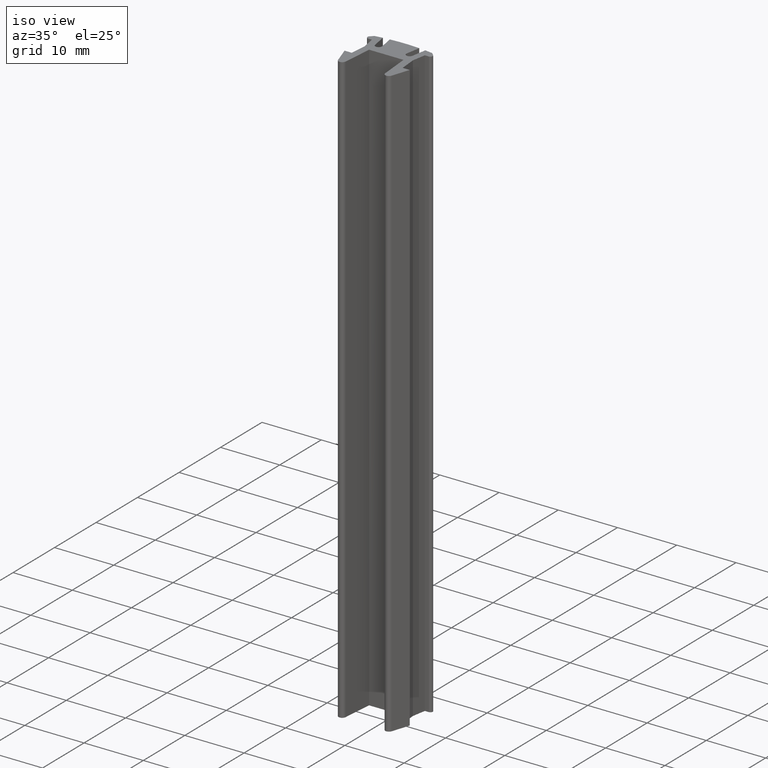
[diagram: clean part render]
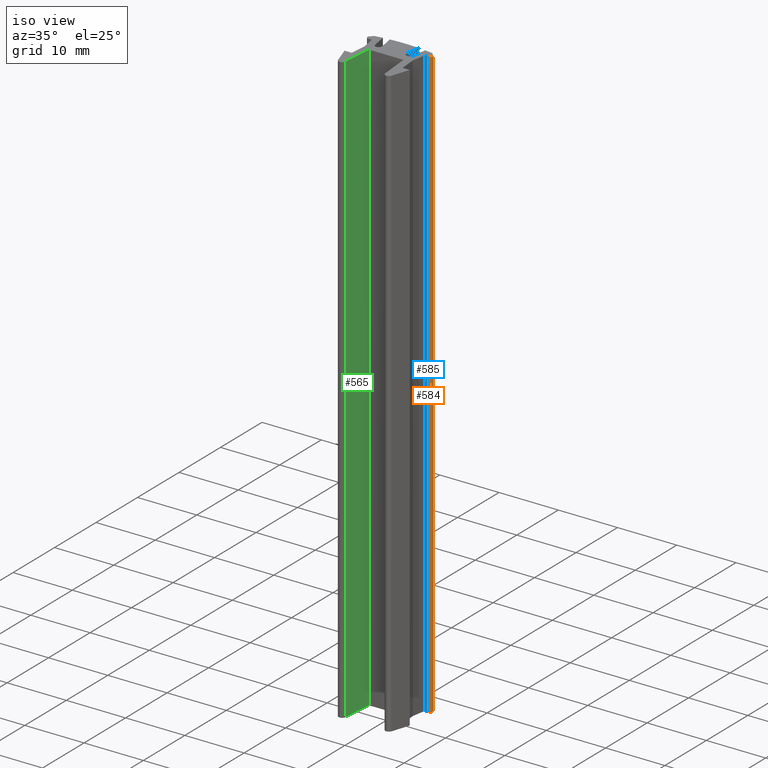
[diagram: same view with three faces highlighted in distinct colors, each labeled with its STEP entity id]
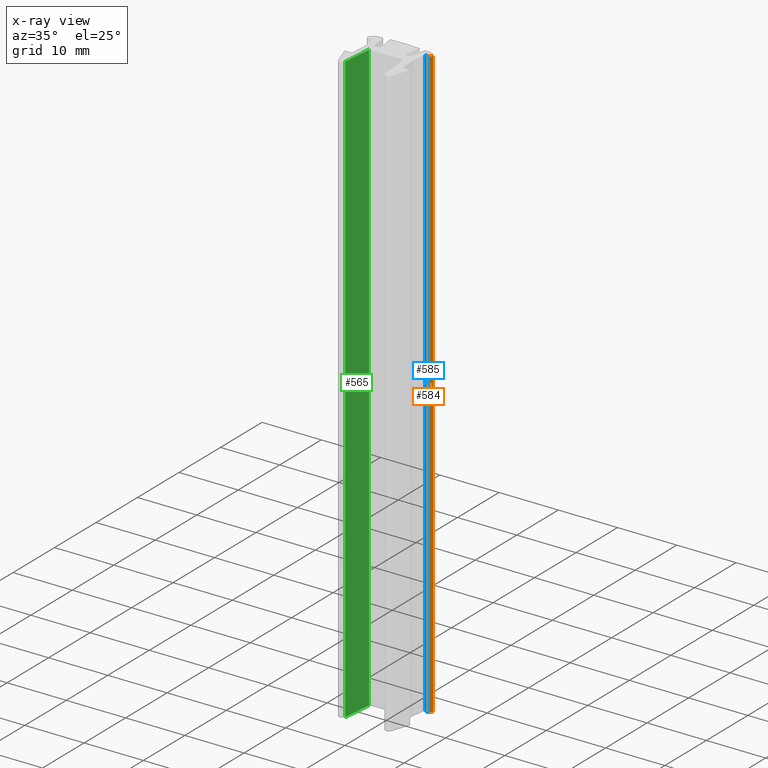
[diagram: x-ray of the same camera — body ghosted, the three highlighted faces saturated]
A machine part, iso view with three faces highlighted in distinct colors.
The next image is the same camera in x-ray (body ghosted, the three faces saturated) — at least one of them is partly hidden behind the body in this view.
Their STEP definitions:

[orange] entity #584 — the highlighted cylindrical surface (edge-blend (fillet) strip) has radius 0.4 mm, axis along (0, 0, 1).
#29=CIRCLE('',#649,0.399999999999949);
#30=CIRCLE('',#650,0.399999999999949);
#40=CYLINDRICAL_SURFACE('',#648,0.399999999999949);
#63=FACE_OUTER_BOUND('',#93,.T.);
#93=EDGE_LOOP('',(#458,#459,#460,#461));
#151=LINE('',#954,#217);
#152=LINE('',#960,#218);
#217=VECTOR('',#782,10.);
#218=VECTOR('',#789,10.);
#276=VERTEX_POINT('',#950);
#277=VERTEX_POINT('',#952);
#278=VERTEX_POINT('',#956);
#279=VERTEX_POINT('',#958);
#353=EDGE_CURVE('',#276,#277,#151,.T.);
#354=EDGE_CURVE('',#278,#276,#29,.T.);
#355=EDGE_CURVE('',#279,#277,#30,.T.);
#356=EDGE_CURVE('',#278,#279,#152,.T.);
#458=ORIENTED_EDGE('',*,*,#354,.T.);
#459=ORIENTED_EDGE('',*,*,#353,.T.);
#460=ORIENTED_EDGE('',*,*,#355,.F.);
#461=ORIENTED_EDGE('',*,*,#356,.F.);
#584=ADVANCED_FACE('',(#63),#40,.T.);
#648=AXIS2_PLACEMENT_3D('',#955,#783,#784);
#649=AXIS2_PLACEMENT_3D('',#957,#785,#786);
#650=AXIS2_PLACEMENT_3D('',#959,#787,#788);
#782=DIRECTION('',(0.,0.,1.));
#783=DIRECTION('center_axis',(0.,0.,1.));
#784=DIRECTION('ref_axis',(0.,-1.,0.));
#785=DIRECTION('center_axis',(0.,0.,1.));
#786=DIRECTION('ref_axis',(0.,-1.,0.));
#787=DIRECTION('center_axis',(0.,0.,1.));
#788=DIRECTION('ref_axis',(0.,-1.,0.));
#789=DIRECTION('',(0.,0.,1.));
#950=CARTESIAN_POINT('',(5.38284269672193,3.5999636495488,0.));
#952=CARTESIAN_POINT('',(5.38284269672193,3.5999636495488,100.));
#954=CARTESIAN_POINT('',(5.38284269672193,3.5999636495488,0.));
#955=CARTESIAN_POINT('Origin',(5.1,3.3171209213215,0.));
#956=CARTESIAN_POINT('',(5.1,2.9171209213215,0.));
#957=CARTESIAN_POINT('Origin',(5.1,3.3171209213215,0.));
#958=CARTESIAN_POINT('',(5.1,2.9171209213215,100.));
#959=CARTESIAN_POINT('Origin',(5.1,3.3171209213215,100.));
#960=CARTESIAN_POINT('',(5.1,2.9171209213215,0.));

[blue] entity #585 — the highlighted planar face has unit normal (0, -1, 0).
#64=FACE_OUTER_BOUND('',#94,.T.);
#94=EDGE_LOOP('',(#462,#463,#464,#465));
#152=LINE('',#960,#218);
#153=LINE('',#963,#219);
#154=LINE('',#965,#220);
#155=LINE('',#966,#221);
#218=VECTOR('',#789,10.);
#219=VECTOR('',#792,10.);
#220=VECTOR('',#793,10.);
#221=VECTOR('',#794,10.);
#278=VERTEX_POINT('',#956);
#279=VERTEX_POINT('',#958);
#280=VERTEX_POINT('',#962);
#281=VERTEX_POINT('',#964);
#356=EDGE_CURVE('',#278,#279,#152,.T.);
#357=EDGE_CURVE('',#280,#278,#153,.T.);
#358=EDGE_CURVE('',#281,#279,#154,.T.);
#359=EDGE_CURVE('',#280,#281,#155,.T.);
#462=ORIENTED_EDGE('',*,*,#357,.T.);
#463=ORIENTED_EDGE('',*,*,#356,.T.);
#464=ORIENTED_EDGE('',*,*,#358,.F.);
#465=ORIENTED_EDGE('',*,*,#359,.F.);
#556=PLANE('',#651);
#585=ADVANCED_FACE('',(#64),#556,.T.);
#651=AXIS2_PLACEMENT_3D('',#961,#790,#791);
#789=DIRECTION('',(0.,0.,1.));
#790=DIRECTION('center_axis',(0.,-1.,0.));
#791=DIRECTION('ref_axis',(1.,0.,0.));
#792=DIRECTION('',(1.,0.,0.));
#793=DIRECTION('',(1.,0.,0.));
#794=DIRECTION('',(0.,0.,1.));
#956=CARTESIAN_POINT('',(5.1,2.9171209213215,0.));
#958=CARTESIAN_POINT('',(5.1,2.9171209213215,100.));
#960=CARTESIAN_POINT('',(5.1,2.9171209213215,0.));
#961=CARTESIAN_POINT('Origin',(4.45908591123214,2.9171209213215,0.));
#962=CARTESIAN_POINT('',(4.45908591123214,2.9171209213215,0.));
#963=CARTESIAN_POINT('',(4.45908591123214,2.9171209213215,0.));
#964=CARTESIAN_POINT('',(4.45908591123214,2.9171209213215,100.));
#965=CARTESIAN_POINT('',(4.45908591123214,2.9171209213215,100.));
#966=CARTESIAN_POINT('',(4.45908591123214,2.9171209213215,0.));

[green] entity #565 — the highlighted planar face has unit normal (0.9962, -0.0872, 0).
#44=FACE_OUTER_BOUND('',#74,.T.);
#74=EDGE_LOOP('',(#382,#383,#384,#385));
#108=LINE('',#840,#174);
#109=LINE('',#843,#175);
#110=LINE('',#845,#176);
#111=LINE('',#846,#177);
#174=VECTOR('',#673,10.);
#175=VECTOR('',#676,10.);
#176=VECTOR('',#677,10.);
#177=VECTOR('',#678,10.);
#238=VERTEX_POINT('',#836);
#239=VERTEX_POINT('',#838);
#240=VERTEX_POINT('',#842);
#241=VERTEX_POINT('',#844);
#296=EDGE_CURVE('',#238,#239,#108,.T.);
#297=EDGE_CURVE('',#240,#238,#109,.T.);
#298=EDGE_CURVE('',#241,#239,#110,.T.);
#299=EDGE_CURVE('',#240,#241,#111,.T.);
#382=ORIENTED_EDGE('',*,*,#297,.T.);
#383=ORIENTED_EDGE('',*,*,#296,.T.);
#384=ORIENTED_EDGE('',*,*,#298,.F.);
#385=ORIENTED_EDGE('',*,*,#299,.F.);
#544=PLANE('',#615);
#565=ADVANCED_FACE('',(#44),#544,.T.);
#615=AXIS2_PLACEMENT_3D('',#841,#674,#675);
#673=DIRECTION('',(0.,0.,1.));
#674=DIRECTION('center_axis',(0.996194698091746,-0.0871557427476585,0.));
#675=DIRECTION('ref_axis',(0.0871557427476585,0.996194698091746,0.));
#676=DIRECTION('',(0.0871557427476585,0.996194698091746,0.));
#677=DIRECTION('',(0.0871557427476585,0.996194698091746,0.));
#678=DIRECTION('',(0.,0.,1.));
#836=CARTESIAN_POINT('',(-2.90294113519095,0.,0.));
#838=CARTESIAN_POINT('',(-2.90294113519095,0.,100.));
#840=CARTESIAN_POINT('',(-2.90294113519095,0.,0.));
#841=CARTESIAN_POINT('Origin',(-3.34495953649153,-5.0522934456486,0.));
#842=CARTESIAN_POINT('',(-3.34495953649153,-5.0522934456486,0.));
#843=CARTESIAN_POINT('',(-3.34495953649153,-5.0522934456486,0.));
#844=CARTESIAN_POINT('',(-3.34495953649153,-5.0522934456486,100.));
#845=CARTESIAN_POINT('',(-3.34495953649153,-5.0522934456486,100.));
#846=CARTESIAN_POINT('',(-3.34495953649153,-5.0522934456486,0.));